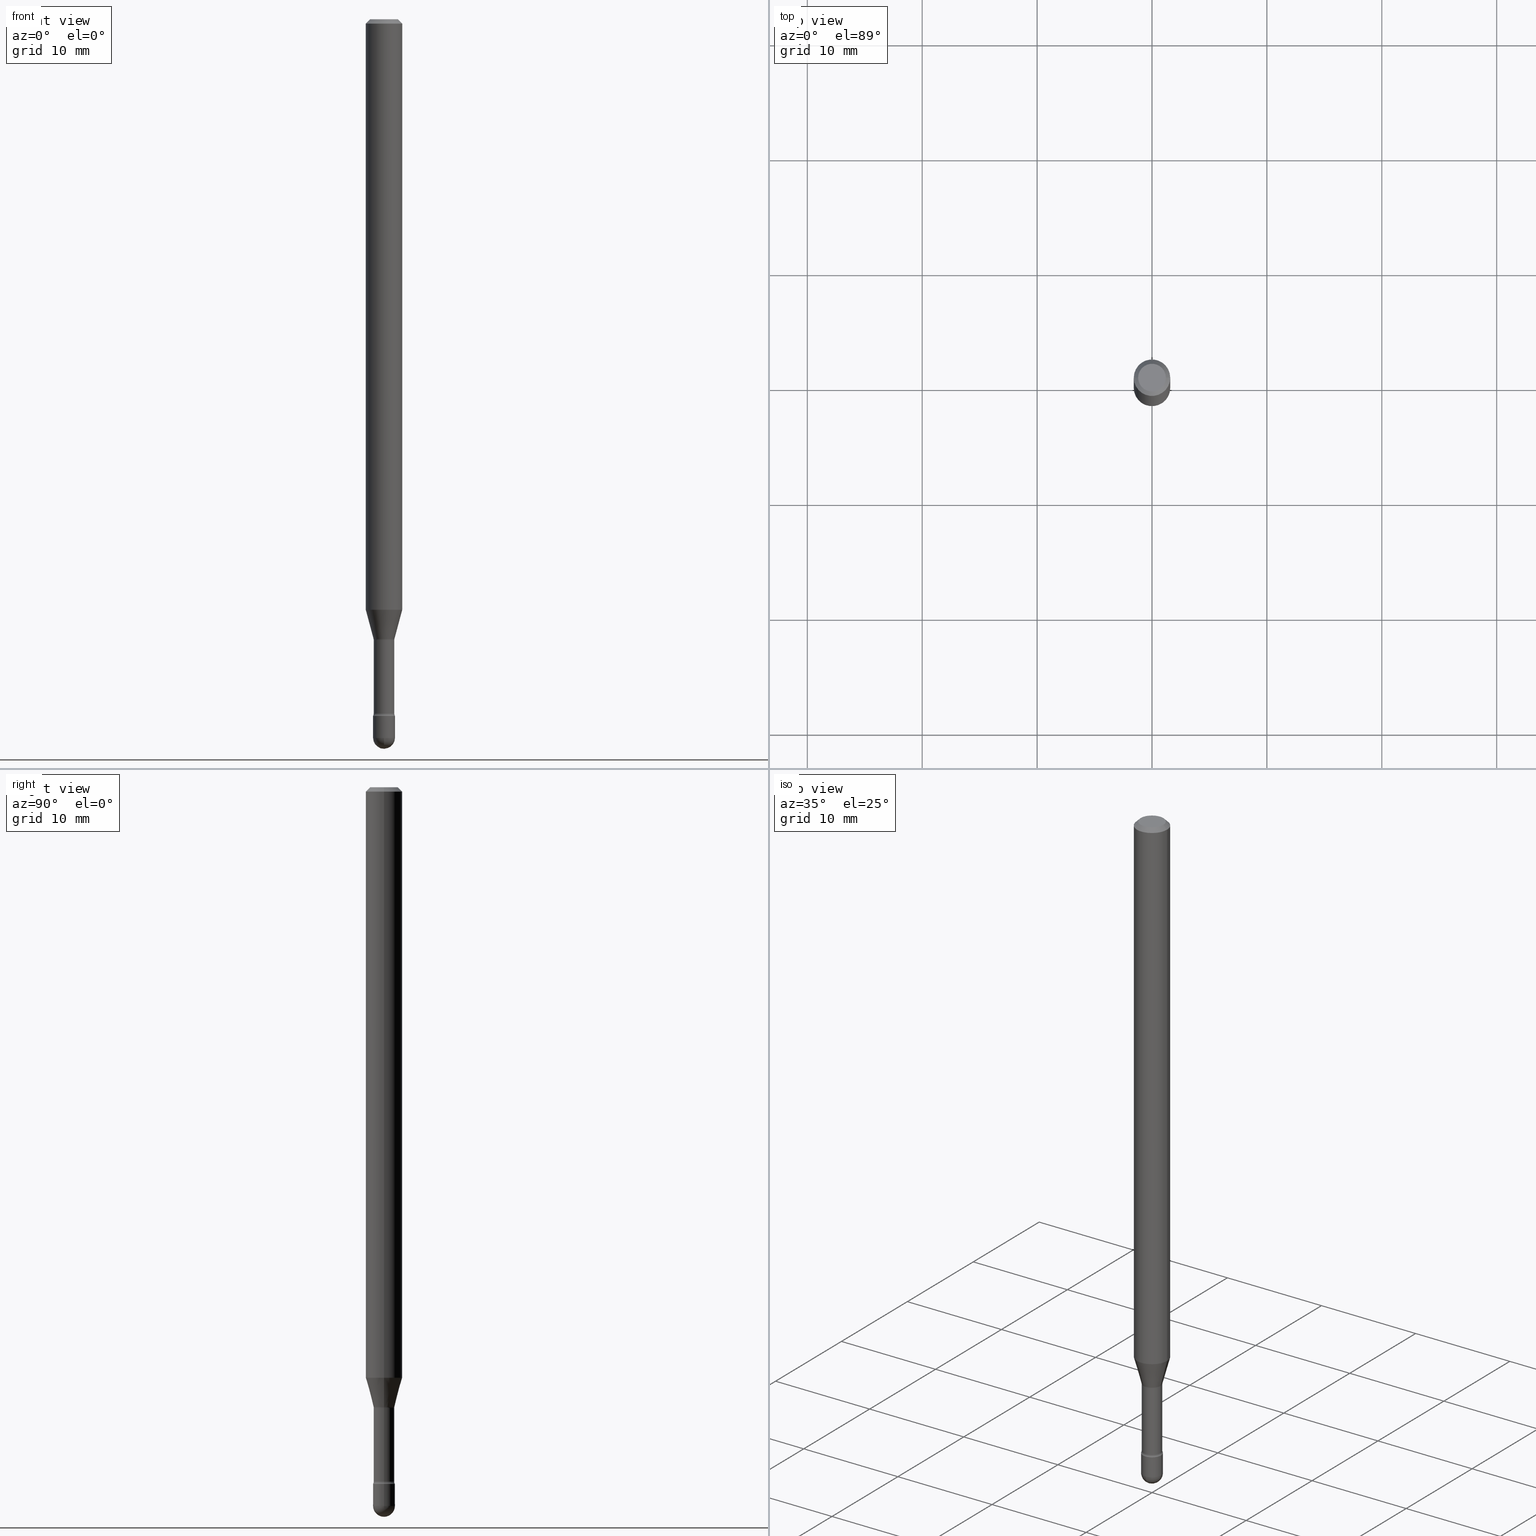
[diagram: canonical four-view strip — front | top / right | iso, engineering-drawing reading convention]
A machine part, canonical four-view strip (front | top / right | iso — engineering-drawing reading convention). The complete STEP part file that produces these views, byte-faithful:
ISO-10303-21;
HEADER;
FILE_DESCRIPTION (( 'STEP AP203' ),
    '1' );
FILE_NAME ('09523.STEP',
    '2024-04-10T00:13:44',
    ( '' ),
    ( '' ),
    'SwSTEP 2.0',
    'SolidWorks 2023',
    '' );
FILE_SCHEMA (( 'CONFIG_CONTROL_DESIGN' ));
ENDSEC;

DATA;
#1 = CARTESIAN_POINT ( 'NONE',  ( 2.023552857353652888E-45, -2.889097183224559242E-31, -8.274703207154537794E-17 ) ) ;
#2 = APPLICATION_CONTEXT ( 'configuration controlled 3d designs of mechanical parts and assemblies' ) ;
#3 = EDGE_LOOP ( 'NONE', ( #565, #58, #166, #438 ) ) ;
#4 = LINE ( 'NONE', #319, #129 ) ;
#5 = CARTESIAN_POINT ( 'NONE',  ( 5.837334040363921048E-29, -8.334165955818587781E-15, -2.387000000000000011 ) ) ;
#6 = DIRECTION ( 'NONE',  ( -2.445468806185136597E-29, 3.491481338843145583E-15, 1.000000000000000000 ) ) ;
#7 = DIRECTION ( 'NONE',  ( -2.445468806185136597E-29, 3.491481338843145583E-15, 1.000000000000000000 ) ) ;
#8 = DIRECTION ( 'NONE',  ( 1.000000000000000000, -6.982962677686265922E-15, 4.876176775795935793E-29 ) ) ;
#9 = AXIS2_PLACEMENT_3D ( 'NONE', #322, #56, #16 ) ;
#10 = ORIENTED_EDGE ( 'NONE', *, *, #157, .T. ) ;
#11 = EDGE_CURVE ( 'NONE', #65, #131, #46, .T. ) ;
#12 = DIRECTION ( 'NONE',  ( -2.445468806185136877E-29, 3.491481338843145188E-15, 1.000000000000000000 ) ) ;
#13 = CARTESIAN_POINT ( 'NONE',  ( 0.03524999999999997580, -8.552726611354078422E-15, -2.379098259685360262 ) ) ;
#14 = EDGE_LOOP ( 'NONE', ( #270, #247, #342, #406, #228 ) ) ;
#15 = APPLICATION_PROTOCOL_DEFINITION ( 'international standard', 'config_control_design', 1994, #2 ) ;
#16 = DIRECTION ( 'NONE',  ( 1.000000000000000000, -6.982962677686258033E-15, 0.000000000000000000 ) ) ;
#17 = EDGE_LOOP ( 'NONE', ( #388, #339 ) ) ;
#18 = CARTESIAN_POINT ( 'NONE',  ( -0.03525000000000000355, -7.615968663437265781E-15, -2.126974787463811190 ) ) ;
#19 = DIRECTION ( 'NONE',  ( 1.000000000000000000, -6.982962677686265922E-15, 4.876176775795935793E-29 ) ) ;
#20 = EDGE_CURVE ( 'NONE', #484, #363, #242, .T. ) ;
#21 = COORDINATED_UNIVERSAL_TIME_OFFSET ( 5, 0, .BEHIND. ) ;
#22 = CONICAL_SURFACE ( 'NONE', #137, 0.06250000000000000000, 0.7853981633974483900 ) ;
#23 = DIRECTION ( 'NONE',  ( -2.438088387897960049E-29, 3.491481338843145188E-15, 1.000000000000000000 ) ) ;
#24 = APPROVAL_STATUS ( 'not_yet_approved' ) ;
#25 = CARTESIAN_POINT ( 'NONE',  ( 5.837334040363921048E-29, -8.334165955818587781E-15, -2.387000000000000011 ) ) ;
#26 = CC_DESIGN_DATE_AND_TIME_ASSIGNMENT ( #330, #285, ( #189 ) ) ;
#27 = PRODUCT ( '09523', '09523', '', ( #264 ) ) ;
#28 = COORDINATED_UNIVERSAL_TIME_OFFSET ( 5, 0, .BEHIND. ) ;
#29 = EDGE_CURVE ( 'NONE', #187, #430, #215, .T. ) ;
#30 = AXIS2_PLACEMENT_3D ( 'NONE', #297, #467, #559 ) ;
#31 = AXIS2_PLACEMENT_3D ( 'NONE', #266, #23, #8 ) ;
#32 = EDGE_CURVE ( 'NONE', #169, #466, #239, .T. ) ;
#33 = ORIENTED_EDGE ( 'NONE', *, *, #186, .F. ) ;
#34 = DIRECTION ( 'NONE',  ( -2.445468806185136597E-29, 3.491481338843145583E-15, 1.000000000000000000 ) ) ;
#35 = DIRECTION ( 'NONE',  ( 1.000000000000000000, -6.982962677686270655E-15, 0.000000000000000000 ) ) ;
#36 = AXIS2_PLACEMENT_3D ( 'NONE', #25, #194, #371 ) ;
#37 = ORIENTED_EDGE ( 'NONE', *, *, #426, .T. ) ;
#38 = CARTESIAN_POINT ( 'NONE',  ( 0.03576111260566391253, -7.662456365265959066E-15, -2.123092501787273711 ) ) ;
#39 = FACE_OUTER_BOUND ( 'NONE', #172, .T. ) ;
#40 = VERTEX_POINT ( 'NONE', #127 ) ;
#41 = CYLINDRICAL_SURFACE ( 'NONE', #207, 0.03524999999999998274 ) ;
#42 = CARTESIAN_POINT ( 'NONE',  ( 6.021966935230899318E-29, -8.597772796901246653E-15, -2.462500000000000355 ) ) ;
#43 = SECURITY_CLASSIFICATION ( '', '', #457 ) ;
#44 = DESIGN_CONTEXT ( 'detailed design', #2, 'design' ) ;
#45 = ORIENTED_EDGE ( 'NONE', *, *, #116, .T. ) ;
#46 = CIRCLE ( 'NONE', #69, 0.04749999999999999362 ) ;
#47 = EDGE_CURVE ( 'NONE', #203, #141, #446, .T. ) ;
#48 = CYLINDRICAL_SURFACE ( 'NONE', #462, 0.06250000000000000000 ) ;
#49 = DIRECTION ( 'NONE',  ( 1.000000000000000000, -6.982962677686266711E-15, 0.000000000000000000 ) ) ;
#50 = AXIS2_PLACEMENT_3D ( 'NONE', #447, #64, #19 ) ;
#51 = ORIENTED_EDGE ( 'NONE', *, *, #116, .F. ) ;
#52 = DIRECTION ( 'NONE',  ( -2.445468806185136597E-29, 3.491481338843145583E-15, 1.000000000000000000 ) ) ;
#53 = DIRECTION ( 'NONE',  ( -2.445468806185136597E-29, 3.491481338843145583E-15, 1.000000000000000000 ) ) ;
#54 = VERTEX_POINT ( 'NONE', #432 ) ;
#55 = VECTOR ( 'NONE', #344, 39.37007874015748143 ) ;
#56 = DIRECTION ( 'NONE',  ( -2.445468806185136597E-29, 3.491481338843145583E-15, 1.000000000000000000 ) ) ;
#57 = EDGE_CURVE ( 'NONE', #353, #298, #71, .T. ) ;
#58 = ORIENTED_EDGE ( 'NONE', *, *, #29, .T. ) ;
#59 = CARTESIAN_POINT ( 'NONE',  ( -0.03576111260566391253, -6.889435243139543592E-15, -2.123092501787273711 ) ) ;
#60 = PRODUCT_RELATED_PRODUCT_CATEGORY ( 'detail', '', ( #27 ) ) ;
#61 = AXIS2_PLACEMENT_3D ( 'NONE', #309, #525, #122 ) ;
#62 = ORIENTED_EDGE ( 'NONE', *, *, #317, .T. ) ;
#63 = DIRECTION ( 'NONE',  ( 1.000000000000000000, -6.982962677686251722E-15, 0.000000000000000000 ) ) ;
#64 = DIRECTION ( 'NONE',  ( -2.438088387897960049E-29, 3.491481338843145188E-15, 1.000000000000000000 ) ) ;
#65 = VERTEX_POINT ( 'NONE', #560 ) ;
#66 = CARTESIAN_POINT ( 'NONE',  ( -0.06250000000000000000, -3.114256816865067970E-15, -0.01500000000000008271 ) ) ;
#67 = PERSON_AND_ORGANIZATION ( #294, #244 ) ;
#68 = FACE_OUTER_BOUND ( 'NONE', #360, .T. ) ;
#69 = AXIS2_PLACEMENT_3D ( 'NONE', #493, #109, #452 ) ;
#70 = PERSON_AND_ORGANIZATION ( #294, #244 ) ;
#71 = CIRCLE ( 'NONE', #553, 0.06250000000000000000 ) ;
#72 = EDGE_CURVE ( 'NONE', #484, #54, #546, .T. ) ;
#73 = CC_DESIGN_DATE_AND_TIME_ASSIGNMENT ( #191, #500, ( #43 ) ) ;
#74 = VECTOR ( 'NONE', #335, 39.37007874015748143 ) ;
#75 = LOCAL_TIME ( 20, 13, 44.00000000000000000, #144 ) ;
#76 = CARTESIAN_POINT ( 'NONE',  ( 5.818010580909894890E-29, -8.306577176965639319E-15, -2.379098259685360262 ) ) ;
#77 = CARTESIAN_POINT ( 'NONE',  ( 5.201450494285011202E-29, -7.426292778619762925E-15, -2.126974787463811190 ) ) ;
#78 = EDGE_LOOP ( 'NONE', ( #310, #268, #445, #536 ) ) ;
#79 = CC_DESIGN_PERSON_AND_ORGANIZATION_ASSIGNMENT ( #414, #368, ( #543 ) ) ;
#80 = AXIS2_PLACEMENT_3D ( 'NONE', #517, #425, #84 ) ;
#81 = FACE_OUTER_BOUND ( 'NONE', #505, .T. ) ;
#82 = ORIENTED_EDGE ( 'NONE', *, *, #385, .T. ) ;
#83 = DIRECTION ( 'NONE',  ( 1.000000000000000000, -6.982962677686258033E-15, 0.000000000000000000 ) ) ;
#84 = DIRECTION ( 'NONE',  ( -1.000000000000000000, 6.982962677686266711E-15, 0.000000000000000000 ) ) ;
#85 = EDGE_CURVE ( 'NONE', #131, #65, #415, .T. ) ;
#86 = ORIENTED_EDGE ( 'NONE', *, *, #307, .F. ) ;
#87 = DIRECTION ( 'NONE',  ( -2.445468806185136597E-29, 3.491481338843145583E-15, 1.000000000000000000 ) ) ;
#88 = DIRECTION ( 'NONE',  ( -2.445468806185136877E-29, 3.491481338843145188E-15, 1.000000000000000000 ) ) ;
#89 = VERTEX_POINT ( 'NONE', #352 ) ;
#90 = CARTESIAN_POINT ( 'NONE',  ( -0.06250000000000000000, 4.440892098500642925E-16, 4.780733988912429571E-16 ) ) ;
#91 = DIRECTION ( 'NONE',  ( -0.7071067811865475727, 2.468850131082257455E-15, -0.7071067811865474617 ) ) ;
#92 = CIRCLE ( 'NONE', #103, 0.03749999999999999861 ) ;
#93 = ORIENTED_EDGE ( 'NONE', *, *, #554, .F. ) ;
#94 = DIRECTION ( 'NONE',  ( 0.2588190451025217942, 1.565188264969618812E-15, 0.9659258262890679791 ) ) ;
#95 = DIRECTION ( 'NONE',  ( 1.000000000000000000, -6.982962677686259611E-15, 0.000000000000000000 ) ) ;
#96 = AXIS2_PLACEMENT_3D ( 'NONE', #102, #178, #140 ) ;
#97 = ORIENTED_EDGE ( 'NONE', *, *, #32, .F. ) ;
#98 = DIRECTION ( 'NONE',  ( -2.445468806185136597E-29, 3.491481338843145583E-15, 1.000000000000000000 ) ) ;
#99 = CARTESIAN_POINT ( 'NONE',  ( 0.03750000000000001943, -8.596027056231822783E-15, -2.387000000000000011 ) ) ;
#100 = EDGE_LOOP ( 'NONE', ( #520, #481 ) ) ;
#101 = APPROVAL_STATUS ( 'not_yet_approved' ) ;
#102 = CARTESIAN_POINT ( 'NONE',  ( 5.818010580909893769E-29, -8.306577176965637742E-15, -2.379098259685360262 ) ) ;
#103 = AXIS2_PLACEMENT_3D ( 'NONE', #272, #192, #440 ) ;
#104 = EDGE_LOOP ( 'NONE', ( #209, #45, #212, #340 ) ) ;
#105 = TOROIDAL_SURFACE ( 'NONE', #448, 0.05024999999999999606, 0.01500000000000001853 ) ;
#106 =( NAMED_UNIT ( * ) SI_UNIT ( $, .STERADIAN. ) SOLID_ANGLE_UNIT ( ) );
#107 = FACE_OUTER_BOUND ( 'NONE', #160, .T. ) ;
#108 =( GEOMETRIC_REPRESENTATION_CONTEXT ( 3 ) GLOBAL_UNCERTAINTY_ASSIGNED_CONTEXT ( ( #519 ) ) GLOBAL_UNIT_ASSIGNED_CONTEXT ( ( #230, #135, #106 ) ) REPRESENTATION_CONTEXT ( 'NONE', 'WORKASPACE' ) );
#109 = DIRECTION ( 'NONE',  ( -2.445468806185136597E-29, 3.491481338843145583E-15, 1.000000000000000000 ) ) ;
#110 = ADVANCED_FACE ( 'NONE', ( #267 ), #441, .F. ) ;
#111 = DIRECTION ( 'NONE',  ( 6.982962677686265922E-15, 1.000000000000000000, 0.000000000000000000 ) ) ;
#112 = APPROVAL_STATUS ( 'not_yet_approved' ) ;
#113 = VECTOR ( 'NONE', #465, 39.37007874015748143 ) ;
#114 = ADVANCED_FACE ( 'NONE', ( #241 ), #22, .T. ) ;
#115 = APPROVAL_ROLE ( '' ) ;
#116 = EDGE_CURVE ( 'NONE', #363, #89, #333, .T. ) ;
#117 = AXIS2_PLACEMENT_3D ( 'NONE', #165, #221, #480 ) ;
#118 = DIRECTION ( 'NONE',  ( -1.000000000000000000, 6.982962677686265922E-15, -4.876176775795935793E-29 ) ) ;
#119 = APPROVAL ( #101, 'UNSPECIFIED' ) ;
#120 = ORIENTED_EDGE ( 'NONE', *, *, #291, .T. ) ;
#121 = CARTESIAN_POINT ( 'NONE',  ( 5.818010580909894890E-29, -8.306577176965639319E-15, -2.379098259685360262 ) ) ;
#122 = DIRECTION ( 'NONE',  ( 1.000000000000000000, -6.982962677686270655E-15, 0.000000000000000000 ) ) ;
#123 = ORIENTED_EDGE ( 'NONE', *, *, #468, .T. ) ;
#124 = AXIS2_PLACEMENT_3D ( 'NONE', #504, #202, #118 ) ;
#125 = SPHERICAL_SURFACE ( 'NONE', #284, 0.03749999999999990147 ) ;
#126 = EDGE_CURVE ( 'NONE', #466, #169, #243, .T. ) ;
#127 = CARTESIAN_POINT ( 'NONE',  ( 0.03749999999999999861, -8.727830476773152219E-15, -2.462500000000000355 ) ) ;
#128 = ORIENTED_EDGE ( 'NONE', *, *, #229, .T. ) ;
#129 = VECTOR ( 'NONE', #12, 39.37007874015748143 ) ;
#130 = CARTESIAN_POINT ( 'NONE',  ( 0.06250000000000000000, -4.888073874380391431E-16, -0.01500000000000008271 ) ) ;
#131 = VERTEX_POINT ( 'NONE', #200 ) ;
#132 = FACE_OUTER_BOUND ( 'NONE', #3, .T. ) ;
#133 = ORIENTED_EDGE ( 'NONE', *, *, #426, .F. ) ;
#134 = EDGE_CURVE ( 'NONE', #203, #532, #376, .T. ) ;
#135 =( NAMED_UNIT ( * ) PLANE_ANGLE_UNIT ( ) SI_UNIT ( $, .RADIAN. ) );
#136 = CARTESIAN_POINT ( 'NONE',  ( 5.191956485766338459E-29, -7.412737850628073127E-15, -2.123092501787273711 ) ) ;
#137 = AXIS2_PLACEMENT_3D ( 'NONE', #338, #499, #155 ) ;
#138 = ORIENTED_EDGE ( 'NONE', *, *, #377, .F. ) ;
#139 = APPLICATION_CONTEXT ( 'configuration controlled 3d designs of mechanical parts and assemblies' ) ;
#140 = DIRECTION ( 'NONE',  ( 1.000000000000000000, -6.982962677686275388E-15, 0.000000000000000000 ) ) ;
#141 = VERTEX_POINT ( 'NONE', #161 ) ;
#142 = FACE_OUTER_BOUND ( 'NONE', #473, .T. ) ;
#143 = ORIENTED_EDGE ( 'NONE', *, *, #201, .F. ) ;
#144 = COORDINATED_UNIVERSAL_TIME_OFFSET ( 5, 0, .BEHIND. ) ;
#145 = CARTESIAN_POINT ( 'NONE',  ( 0.03576111260566391253, -7.662456365265959066E-15, -2.123092501787273711 ) ) ;
#146 = EDGE_CURVE ( 'NONE', #357, #430, #323, .T. ) ;
#147 = AXIS2_PLACEMENT_3D ( 'NONE', #175, #392, #95 ) ;
#148 = EDGE_LOOP ( 'NONE', ( #33, #86 ) ) ;
#149 = CARTESIAN_POINT ( 'NONE',  ( 0.000000000000000000, 0.000000000000000000, 0.000000000000000000 ) ) ;
#150 = CARTESIAN_POINT ( 'NONE',  ( 5.201450494285011202E-29, -7.426292778619762925E-15, -2.126974787463811190 ) ) ;
#151 = ADVANCED_FACE ( 'NONE', ( #39 ), #48, .T. ) ;
#152 = CLOSED_SHELL ( 'NONE', ( #501, #354, #459, #281, #151, #488, #346, #518, #114, #110, #419, #436, #496, #409 ) ) ;
#153 = AXIS2_PLACEMENT_3D ( 'NONE', #42, #245, #379 ) ;
#154 = APPROVAL ( #112, 'UNSPECIFIED' ) ;
#155 = DIRECTION ( 'NONE',  ( -1.000000000000000000, 6.982962677686266711E-15, 0.000000000000000000 ) ) ;
#156 = SHAPE_DEFINITION_REPRESENTATION ( #416, #231 ) ;
#157 = EDGE_CURVE ( 'NONE', #514, #89, #469, .T. ) ;
#158 = AXIS2_PLACEMENT_3D ( 'NONE', #563, #341, #391 ) ;
#159 = LOCAL_TIME ( 20, 13, 44.00000000000000000, #498 ) ;
#160 = EDGE_LOOP ( 'NONE', ( #254, #123, #449, #93 ) ) ;
#161 = CARTESIAN_POINT ( 'NONE',  ( -0.03750000000000001943, -8.067712429908551158E-15, -2.387000000000000011 ) ) ;
#162 = ORIENTED_EDGE ( 'NONE', *, *, #47, .F. ) ;
#163 = EDGE_CURVE ( 'NONE', #349, #54, #260, .T. ) ;
#164 = CARTESIAN_POINT ( 'NONE',  ( -1.169113584055446105E-44, 1.669184350826100908E-30, 4.780733988912460139E-16 ) ) ;
#165 = CARTESIAN_POINT ( 'NONE',  ( -0.05025000000000001688, -7.949529452246189645E-15, -2.379098259685360262 ) ) ;
#166 = ORIENTED_EDGE ( 'NONE', *, *, #146, .F. ) ;
#167 = CARTESIAN_POINT ( 'NONE',  ( -1.169113584055446105E-44, 1.669184350826100908E-30, 4.780733988912460139E-16 ) ) ;
#168 = DIRECTION ( 'NONE',  ( 7.105427357601001859E-15, 1.000000000000000000, -3.491481338843145583E-15 ) ) ;
#169 = VERTEX_POINT ( 'NONE', #566 ) ;
#170 = DIRECTION ( 'NONE',  ( 6.982962677686265922E-15, 1.000000000000000000, 0.000000000000000000 ) ) ;
#171 = DIRECTION ( 'NONE',  ( 1.000000000000000000, -6.982962677686267499E-15, 4.884662768193073002E-29 ) ) ;
#172 = EDGE_LOOP ( 'NONE', ( #10, #378, #314, #143 ) ) ;
#173 = AXIS2_PLACEMENT_3D ( 'NONE', #76, #213, #556 ) ;
#174 = DIRECTION ( 'NONE',  ( -2.445468806185136597E-29, 3.491481338843145583E-15, 1.000000000000000000 ) ) ;
#175 = CARTESIAN_POINT ( 'NONE',  ( 0.05024999999999999606, -7.777186653173496975E-15, -2.126974787463811190 ) ) ;
#176 = EDGE_LOOP ( 'NONE', ( #475, #433, #470, #318 ) ) ;
#177 = DIRECTION ( 'NONE',  ( -2.445468806185136597E-29, 3.491481338843145583E-15, 1.000000000000000000 ) ) ;
#178 = DIRECTION ( 'NONE',  ( -2.445468806185136597E-29, 3.491481338843145583E-15, 1.000000000000000000 ) ) ;
#179 = AXIS2_PLACEMENT_3D ( 'NONE', #136, #408, #313 ) ;
#180 = ORIENTED_EDGE ( 'NONE', *, *, #337, .T. ) ;
#181 = DIRECTION ( 'NONE',  ( 1.000000000000000000, -6.982962677686266711E-15, 4.852736867747366207E-29 ) ) ;
#182 = FACE_OUTER_BOUND ( 'NONE', #279, .T. ) ;
#183 = EDGE_LOOP ( 'NONE', ( #421, #404, #561, #347 ) ) ;
#184 = PERSON_AND_ORGANIZATION ( #294, #244 ) ;
#185 = CARTESIAN_POINT ( 'NONE',  ( -0.03749999999999999861, -8.199515850449880594E-15, -2.462500000000000355 ) ) ;
#186 = EDGE_CURVE ( 'NONE', #427, #141, #197, .T. ) ;
#187 = VERTEX_POINT ( 'NONE', #512 ) ;
#188 = CARTESIAN_POINT ( 'NONE',  ( 0.05025000000000001688, -8.657471051519373369E-15, -2.379098259685360262 ) ) ;
#189 = PRODUCT_DEFINITION ( 'UNKNOWN', '', #543, #44 ) ;
#190 = AXIS2_PLACEMENT_3D ( 'NONE', #403, #451, #235 ) ;
#191 = DATE_AND_TIME ( #240, #367 ) ;
#192 = DIRECTION ( 'NONE',  ( -2.445468806185136597E-29, 3.491481338843145583E-15, 1.000000000000000000 ) ) ;
#193 = ADVANCED_FACE ( 'NONE', ( #132 ), #125, .T. ) ;
#194 = DIRECTION ( 'NONE',  ( -2.445468806185136597E-29, 3.491481338843145583E-15, 1.000000000000000000 ) ) ;
#195 = LOCAL_TIME ( 20, 13, 44.00000000000000000, #28 ) ;
#196 = CC_DESIGN_PERSON_AND_ORGANIZATION_ASSIGNMENT ( #283, #417, ( #543 ) ) ;
#197 = CIRCLE ( 'NONE', #290, 0.03749999999999999861 ) ;
#198 = CALENDAR_DATE ( 2024, 9, 4 ) ;
#199 = CC_DESIGN_APPROVAL ( #154, ( #43 ) ) ;
#200 = CARTESIAN_POINT ( 'NONE',  ( 0.04749999999999999362, -4.035134999187581581E-16, -8.274703207154280181E-17 ) ) ;
#201 = EDGE_CURVE ( 'NONE', #514, #298, #205, .T. ) ;
#202 = DIRECTION ( 'NONE',  ( 2.438088387897960049E-29, -3.491481338843145188E-15, -1.000000000000000000 ) ) ;
#203 = VERTEX_POINT ( 'NONE', #507 ) ;
#204 = CIRCLE ( 'NONE', #61, 0.03524999999999999661 ) ;
#205 = LINE ( 'NONE', #431, #458 ) ;
#206 = CARTESIAN_POINT ( 'NONE',  ( 3.668203209277725232E-31, -5.237222008264747365E-17, -0.01500000000000008271 ) ) ;
#207 = AXIS2_PLACEMENT_3D ( 'NONE', #167, #87, #256 ) ;
#208 = EDGE_CURVE ( 'NONE', #54, #532, #204, .T. ) ;
#209 = ORIENTED_EDGE ( 'NONE', *, *, #20, .T. ) ;
#210 = FACE_OUTER_BOUND ( 'NONE', #104, .T. ) ;
#211 = DIRECTION ( 'NONE',  ( -1.000000000000000000, 6.982962677686265922E-15, -4.883557194083112340E-29 ) ) ;
#212 = ORIENTED_EDGE ( 'NONE', *, *, #157, .F. ) ;
#213 = DIRECTION ( 'NONE',  ( -2.445468806185136597E-29, 3.491481338843145583E-15, 1.000000000000000000 ) ) ;
#214 = CARTESIAN_POINT ( 'NONE',  ( 0.03524999999999998274, -2.461494343884391522E-16, 4.780733988912477889E-16 ) ) ;
#215 = CIRCLE ( 'NONE', #538, 0.03749999999999990147 ) ;
#216 = AXIS2_PLACEMENT_3D ( 'NONE', #521, #435, #429 ) ;
#217 = ORIENTED_EDGE ( 'NONE', *, *, #47, .T. ) ;
#218 = LOCAL_TIME ( 20, 13, 44.00000000000000000, #402 ) ;
#219 = CARTESIAN_POINT ( 'NONE',  ( 5.201450494285011202E-29, -7.426292778619762925E-15, -2.126974787463811190 ) ) ;
#220 = DIRECTION ( 'NONE',  ( 1.000000000000000000, -6.982962677686266711E-15, 0.000000000000000000 ) ) ;
#221 = DIRECTION ( 'NONE',  ( 7.105427357601001859E-15, 1.000000000000000000, -3.491481338843145583E-15 ) ) ;
#222 = CARTESIAN_POINT ( 'NONE',  ( 5.191956485766338459E-29, -7.412737850628073127E-15, -2.123092501787273711 ) ) ;
#223 = CYLINDRICAL_SURFACE ( 'NONE', #541, 0.03749999999999999861 ) ;
#224 = ORIENTED_EDGE ( 'NONE', *, *, #317, .F. ) ;
#225 = PERSON_AND_ORGANIZATION_ROLE ( 'creator' ) ;
#226 = DIRECTION ( 'NONE',  ( -2.445468806185136597E-29, 3.491481338843145583E-15, 1.000000000000000000 ) ) ;
#227 = AXIS2_PLACEMENT_3D ( 'NONE', #437, #53, #306 ) ;
#228 = ORIENTED_EDGE ( 'NONE', *, *, #126, .F. ) ;
#229 = EDGE_CURVE ( 'NONE', #40, #442, #434, .T. ) ;
#230 =( CONVERSION_BASED_UNIT ( 'INCH', #280 ) LENGTH_UNIT ( ) NAMED_UNIT ( #293 ) );
#231 = ADVANCED_BREP_SHAPE_REPRESENTATION ( '09523', ( #327, #497, #418 ), #108 ) ;
#232 = CARTESIAN_POINT ( 'NONE',  ( 0.000000000000000000, 0.000000000000000000, 0.000000000000000000 ) ) ;
#233 = ORIENTED_EDGE ( 'NONE', *, *, #413, .T. ) ;
#234 = APPLICATION_PROTOCOL_DEFINITION ( 'international standard', 'config_control_design', 1994, #139 ) ;
#235 = DIRECTION ( 'NONE',  ( 1.000000000000000000, -6.982962677686268288E-15, 4.818320294217244513E-29 ) ) ;
#236 = APPROVAL_ROLE ( '' ) ;
#237 = FACE_OUTER_BOUND ( 'NONE', #100, .T. ) ;
#238 = EDGE_CURVE ( 'NONE', #532, #54, #259, .T. ) ;
#239 = CIRCLE ( 'NONE', #227, 0.03749999999999999861 ) ;
#240 = CALENDAR_DATE ( 2024, 9, 4 ) ;
#241 = FACE_OUTER_BOUND ( 'NONE', #176, .T. ) ;
#242 = CIRCLE ( 'NONE', #456, 0.03576111260566391253 ) ;
#243 = CIRCLE ( 'NONE', #36, 0.03749999999999999861 ) ;
#244 = ORGANIZATION ( 'UNSPECIFIED', 'UNSPECIFIED', '' ) ;
#245 = DIRECTION ( 'NONE',  ( -2.445468806185136597E-29, 3.491481338843145583E-15, 1.000000000000000000 ) ) ;
#246 = EDGE_CURVE ( 'NONE', #40, #169, #302, .T. ) ;
#247 = ORIENTED_EDGE ( 'NONE', *, *, #146, .T. ) ;
#248 = CONICAL_SURFACE ( 'NONE', #9, 0.03576111260566391253, 0.2617993877991505181 ) ;
#249 = CARTESIAN_POINT ( 'NONE',  ( 2.618611004132948565E-16, 0.03749999999999135275, -2.462500000000000355 ) ) ;
#250 = CARTESIAN_POINT ( 'NONE',  ( -0.06250000000000000000, 3.840629472727441958E-16, -0.01500000000000008271 ) ) ;
#251 = CC_DESIGN_PERSON_AND_ORGANIZATION_ASSIGNMENT ( #545, #410, ( #43 ) ) ;
#252 = EDGE_LOOP ( 'NONE', ( #51, #62, #233, #138 ) ) ;
#253 = FACE_OUTER_BOUND ( 'NONE', #14, .T. ) ;
#254 = ORIENTED_EDGE ( 'NONE', *, *, #29, .F. ) ;
#255 = EDGE_CURVE ( 'NONE', #65, #353, #472, .T. ) ;
#256 = DIRECTION ( 'NONE',  ( 1.000000000000000000, -6.982962677686268288E-15, 4.818320294217244513E-29 ) ) ;
#257 = CYLINDRICAL_SURFACE ( 'NONE', #216, 0.03749999999999999861 ) ;
#258 = EDGE_LOOP ( 'NONE', ( #308, #217, #394, #523 ) ) ;
#259 = CIRCLE ( 'NONE', #356, 0.03524999999999999661 ) ;
#260 = LINE ( 'NONE', #214, #113 ) ;
#261 = ORIENTED_EDGE ( 'NONE', *, *, #85, .F. ) ;
#262 = TOROIDAL_SURFACE ( 'NONE', #531, 0.05024999999999999606, 0.01500000000000001853 ) ;
#263 = CC_DESIGN_PERSON_AND_ORGANIZATION_ASSIGNMENT ( #443, #225, ( #189 ) ) ;
#264 = MECHANICAL_CONTEXT ( 'NONE', #139, 'mechanical' ) ;
#265 = AXIS2_PLACEMENT_3D ( 'NONE', #562, #511, #83 ) ;
#266 = CARTESIAN_POINT ( 'NONE',  ( 2.618611004132933280E-16, 0.03749999999999166500, -2.387000000000000011 ) ) ;
#267 = FACE_OUTER_BOUND ( 'NONE', #17, .T. ) ;
#268 = ORIENTED_EDGE ( 'NONE', *, *, #548, .T. ) ;
#269 = APPROVAL_DATE_TIME ( #271, #119 ) ;
#270 = ORIENTED_EDGE ( 'NONE', *, *, #544, .F. ) ;
#271 = DATE_AND_TIME ( #482, #75 ) ;
#272 = CARTESIAN_POINT ( 'NONE',  ( 6.021966935230899318E-29, -8.597772796901246653E-15, -2.462500000000000355 ) ) ;
#273 = AXIS2_PLACEMENT_3D ( 'NONE', #396, #174, #444 ) ;
#274 = ORIENTED_EDGE ( 'NONE', *, *, #134, .T. ) ;
#275 = CC_DESIGN_SECURITY_CLASSIFICATION ( #43, ( #543 ) ) ;
#276 = CARTESIAN_POINT ( 'NONE',  ( 5.818010580909893769E-29, -8.306577176965637742E-15, -2.379098259685360262 ) ) ;
#277 = AXIS2_PLACEMENT_3D ( 'NONE', #524, #177, #540 ) ;
#278 = CONICAL_SURFACE ( 'NONE', #265, 0.03576111260566391253, 0.2617993877991505181 ) ;
#279 = EDGE_LOOP ( 'NONE', ( #399, #324, #295, #423 ) ) ;
#280 = LENGTH_MEASURE_WITH_UNIT ( LENGTH_MEASURE( 0.02539999999999999897 ), #350 );
#281 = ADVANCED_FACE ( 'NONE', ( #81 ), #299, .T. ) ;
#282 = CARTESIAN_POINT ( 'NONE',  ( 0.06250000000000000000, -4.811533449433681963E-16, -0.01500000000000008271 ) ) ;
#283 = PERSON_AND_ORGANIZATION ( #294, #244 ) ;
#284 = AXIS2_PLACEMENT_3D ( 'NONE', #422, #211, #170 ) ;
#285 = DATE_TIME_ROLE ( 'creation_date' ) ;
#286 = APPROVAL ( #24, 'UNSPECIFIED' ) ;
#287 = AXIS2_PLACEMENT_3D ( 'NONE', #188, #364, #63 ) ;
#288 = APPROVAL_DATE_TIME ( #370, #154 ) ;
#289 = ADVANCED_FACE ( 'NONE', ( #253 ), #257, .T. ) ;
#290 = AXIS2_PLACEMENT_3D ( 'NONE', #5, #557, #351 ) ;
#291 = EDGE_CURVE ( 'NONE', #363, #532, #373, .T. ) ;
#292 = DIRECTION ( 'NONE',  ( -2.445468806185136597E-29, 3.491481338843145583E-15, 1.000000000000000000 ) ) ;
#293 = DIMENSIONAL_EXPONENTS ( 1.000000000000000000, 0.000000000000000000, 0.000000000000000000, 0.000000000000000000, 0.000000000000000000, 0.000000000000000000, 0.000000000000000000 ) ;
#294 = PERSON ( 'UNSPECIFIED', 'UNSPECIFIED', 'UNSPECIFIED', ('UNSPECIFIED'), ('UNSPECIFIED'), ('UNSPECIFIED') ) ;
#295 = ORIENTED_EDGE ( 'NONE', *, *, #72, .T. ) ;
#296 = DIRECTION ( 'NONE',  ( 1.000000000000000000, -6.982962677686265922E-15, 4.883557194083112340E-29 ) ) ;
#297 = CARTESIAN_POINT ( 'NONE',  ( 6.021966935230899318E-29, -8.597772796901246653E-15, -2.462500000000000355 ) ) ;
#298 = VERTEX_POINT ( 'NONE', #130 ) ;
#299 = CONICAL_SURFACE ( 'NONE', #80, 0.06250000000000000000, 0.7853981633974483900 ) ;
#300 = FACE_OUTER_BOUND ( 'NONE', #258, .T. ) ;
#301 = EDGE_CURVE ( 'NONE', #298, #353, #366, .T. ) ;
#302 = LINE ( 'NONE', #476, #513 ) ;
#303 = ORIENTED_EDGE ( 'NONE', *, *, #301, .T. ) ;
#304 = TOROIDAL_SURFACE ( 'NONE', #550, 0.05025000000000001688, 0.01500000000000003414 ) ;
#305 = CARTESIAN_POINT ( 'NONE',  ( 3.668203209277725232E-31, -5.237222008264747365E-17, -0.01500000000000008271 ) ) ;
#306 = DIRECTION ( 'NONE',  ( 1.000000000000000000, -6.982962677686268288E-15, 0.000000000000000000 ) ) ;
#307 = EDGE_CURVE ( 'NONE', #141, #427, #502, .T. ) ;
#308 = ORIENTED_EDGE ( 'NONE', *, *, #548, .F. ) ;
#309 = CARTESIAN_POINT ( 'NONE',  ( 5.201450494285011202E-29, -7.426292778619762925E-15, -2.126974787463811190 ) ) ;
#310 = ORIENTED_EDGE ( 'NONE', *, *, #134, .F. ) ;
#311 = CARTESIAN_POINT ( 'NONE',  ( 0.06250000000000000000, -7.500755000703003789E-15, -2.023301615493748873 ) ) ;
#312 = VECTOR ( 'NONE', #91, 39.37007874015748143 ) ;
#313 = DIRECTION ( 'NONE',  ( 1.000000000000000000, -6.982962677686258033E-15, 0.000000000000000000 ) ) ;
#314 = ORIENTED_EDGE ( 'NONE', *, *, #301, .F. ) ;
#315 = APPROVAL_ROLE ( '' ) ;
#316 = CARTESIAN_POINT ( 'NONE',  ( -2.664535259099769655E-16, -0.03750000000000854733, -2.462500000000000355 ) ) ;
#317 = EDGE_CURVE ( 'NONE', #363, #484, #336, .T. ) ;
#318 = ORIENTED_EDGE ( 'NONE', *, *, #57, .T. ) ;
#319 = CARTESIAN_POINT ( 'NONE',  ( -0.03749999999999999861, 2.664535259100375598E-16, -1.844600658845589808E-30 ) ) ;
#320 = DIRECTION ( 'NONE',  ( -2.445468806185136597E-29, 3.491481338843145583E-15, 1.000000000000000000 ) ) ;
#321 = ORIENTED_EDGE ( 'NONE', *, *, #238, .T. ) ;
#322 = CARTESIAN_POINT ( 'NONE',  ( 5.191956485766338459E-29, -7.412737850628073127E-15, -2.123092501787273711 ) ) ;
#323 = CIRCLE ( 'NONE', #153, 0.03749999999999999861 ) ;
#324 = ORIENTED_EDGE ( 'NONE', *, *, #20, .F. ) ;
#325 = APPROVAL_PERSON_ORGANIZATION ( #184, #119, #315 ) ;
#326 = DIRECTION ( 'NONE',  ( 1.000000000000000000, -6.982962677686262766E-15, 0.000000000000000000 ) ) ;
#327 = MANIFOLD_SOLID_BREP ( 'Body-Move/Copy2[1]', #487 ) ;
#328 = CC_DESIGN_PERSON_AND_ORGANIZATION_ASSIGNMENT ( #494, #485, ( #27 ) ) ;
#329 = AXIS2_PLACEMENT_3D ( 'NONE', #495, #486, #111 ) ;
#330 = DATE_AND_TIME ( #372, #218 ) ;
#331 = AXIS2_PLACEMENT_3D ( 'NONE', #439, #7, #181 ) ;
#332 = ADVANCED_FACE ( 'NONE', ( #107 ), #492, .T. ) ;
#333 = LINE ( 'NONE', #420, #343 ) ;
#334 = CC_DESIGN_APPROVAL ( #286, ( #543 ) ) ;
#335 = DIRECTION ( 'NONE',  ( -2.445468806185136877E-29, 3.491481338843145188E-15, 1.000000000000000000 ) ) ;
#336 = CIRCLE ( 'NONE', #179, 0.03576111260566391253 ) ;
#337 = EDGE_CURVE ( 'NONE', #442, #357, #92, .T. ) ;
#338 = CARTESIAN_POINT ( 'NONE',  ( 3.668203209277725232E-31, -5.237222008264747365E-17, -0.01500000000000008271 ) ) ;
#339 = ORIENTED_EDGE ( 'NONE', *, *, #85, .T. ) ;
#340 = ORIENTED_EDGE ( 'NONE', *, *, #413, .F. ) ;
#341 = DIRECTION ( 'NONE',  ( -2.445468806185136597E-29, 3.491481338843145583E-15, 1.000000000000000000 ) ) ;
#342 = ORIENTED_EDGE ( 'NONE', *, *, #554, .T. ) ;
#343 = VECTOR ( 'NONE', #460, 39.37007874015748143 ) ;
#344 = DIRECTION ( 'NONE',  ( -2.445468806185136877E-29, 3.491481338843145188E-15, 1.000000000000000000 ) ) ;
#345 = DIRECTION ( 'NONE',  ( -1.000000000000000000, 7.105427357600982137E-15, 0.000000000000000000 ) ) ;
#346 = ADVANCED_FACE ( 'NONE', ( #454 ), #248, .T. ) ;
#347 = ORIENTED_EDGE ( 'NONE', *, *, #57, .F. ) ;
#348 = DIRECTION ( 'NONE',  ( -2.445468806185136597E-29, 3.491481338843145583E-15, 1.000000000000000000 ) ) ;
#349 = VERTEX_POINT ( 'NONE', #13 ) ;
#350 =( LENGTH_UNIT ( ) NAMED_UNIT ( * ) SI_UNIT ( $, .METRE. ) );
#351 = DIRECTION ( 'NONE',  ( 1.000000000000000000, -6.982962677686268288E-15, 0.000000000000000000 ) ) ;
#352 = CARTESIAN_POINT ( 'NONE',  ( -0.06250000000000000000, -6.620230623497551082E-15, -2.023301615493748873 ) ) ;
#353 = VERTEX_POINT ( 'NONE', #66 ) ;
#354 = ADVANCED_FACE ( 'NONE', ( #68 ), #534, .T. ) ;
#355 = AXIS2_PLACEMENT_3D ( 'NONE', #1, #508, #171 ) ;
#356 = AXIS2_PLACEMENT_3D ( 'NONE', #77, #348, #35 ) ;
#357 = VERTEX_POINT ( 'NONE', #185 ) ;
#358 = FACE_OUTER_BOUND ( 'NONE', #183, .T. ) ;
#359 = CARTESIAN_POINT ( 'NONE',  ( 4.947920986193955666E-29, -7.064319833347612909E-15, -2.023301615493748873 ) ) ;
#360 = EDGE_LOOP ( 'NONE', ( #37, #274, #539, #509 ) ) ;
#361 = FACE_OUTER_BOUND ( 'NONE', #526, .T. ) ;
#362 = PLANE ( 'NONE',  #50 ) ;
#363 = VERTEX_POINT ( 'NONE', #59 ) ;
#364 = DIRECTION ( 'NONE',  ( -6.982962677686266711E-15, -1.000000000000000000, 3.491481338843145583E-15 ) ) ;
#365 = DIRECTION ( 'NONE',  ( 0.7071067811865475727, -7.319954787623256045E-15, -0.7071067811865474617 ) ) ;
#366 = CIRCLE ( 'NONE', #527, 0.06250000000000000000 ) ;
#367 = LOCAL_TIME ( 20, 13, 44.00000000000000000, #21 ) ;
#368 = PERSON_AND_ORGANIZATION_ROLE ( 'creator' ) ;
#369 = FACE_OUTER_BOUND ( 'NONE', #148, .T. ) ;
#370 = DATE_AND_TIME ( #547, #159 ) ;
#371 = DIRECTION ( 'NONE',  ( 1.000000000000000000, -6.982962677686268288E-15, 0.000000000000000000 ) ) ;
#372 = CALENDAR_DATE ( 2024, 9, 4 ) ;
#373 = CIRCLE ( 'NONE', #478, 0.01500000000000001853 ) ;
#374 = DATE_AND_TIME ( #198, #195 ) ;
#375 = CIRCLE ( 'NONE', #516, 0.03524999999999997580 ) ;
#376 = LINE ( 'NONE', #549, #74 ) ;
#377 = EDGE_CURVE ( 'NONE', #89, #514, #412, .T. ) ;
#378 = ORIENTED_EDGE ( 'NONE', *, *, #450, .T. ) ;
#379 = DIRECTION ( 'NONE',  ( 1.000000000000000000, -6.982962677686242256E-15, 0.000000000000000000 ) ) ;
#380 = ADVANCED_FACE ( 'NONE', ( #142 ), #223, .T. ) ;
#381 = DIRECTION ( 'NONE',  ( -1.000000000000000000, 7.105427357601001070E-15, -4.926315508542082329E-29 ) ) ;
#382 = ORIENTED_EDGE ( 'NONE', *, *, #72, .F. ) ;
#383 = DIRECTION ( 'NONE',  ( -2.445468806185136877E-29, 3.491481338843145188E-15, 1.000000000000000000 ) ) ;
#384 = ORIENTED_EDGE ( 'NONE', *, *, #255, .F. ) ;
#385 = EDGE_CURVE ( 'NONE', #131, #298, #542, .T. ) ;
#386 = CARTESIAN_POINT ( 'NONE',  ( -0.05024999999999999606, -7.069245053900312462E-15, -2.126974787463811190 ) ) ;
#387 = CARTESIAN_POINT ( 'NONE',  ( 6.021966935230899318E-29, -8.597772796901246653E-15, -2.462500000000000355 ) ) ;
#388 = ORIENTED_EDGE ( 'NONE', *, *, #11, .T. ) ;
#389 = VECTOR ( 'NONE', #365, 39.37007874015748143 ) ;
#390 = CARTESIAN_POINT ( 'NONE',  ( 6.021966935230899318E-29, -8.597772796901246653E-15, -2.462500000000000355 ) ) ;
#391 = DIRECTION ( 'NONE',  ( 1.000000000000000000, -6.982962677686262766E-15, 0.000000000000000000 ) ) ;
#392 = DIRECTION ( 'NONE',  ( -6.982962677686266711E-15, -1.000000000000000000, 3.491481338843145583E-15 ) ) ;
#393 = CC_DESIGN_APPROVAL ( #119, ( #189 ) ) ;
#394 = ORIENTED_EDGE ( 'NONE', *, *, #307, .T. ) ;
#395 = DIRECTION ( 'NONE',  ( 1.000000000000000000, -6.982962677686267499E-15, 4.883557194083112901E-29 ) ) ;
#396 = CARTESIAN_POINT ( 'NONE',  ( 5.837334040363921048E-29, -8.334165955818587781E-15, -2.387000000000000011 ) ) ;
#397 = DIRECTION ( 'NONE',  ( -7.105427357601001859E-15, -1.000000000000000000, 0.000000000000000000 ) ) ;
#398 = ADVANCED_FACE ( 'NONE', ( #237 ), #362, .T. ) ;
#399 = ORIENTED_EDGE ( 'NONE', *, *, #291, .F. ) ;
#400 = PLANE ( 'NONE',  #31 ) ;
#401 = ORIENTED_EDGE ( 'NONE', *, *, #246, .F. ) ;
#402 = COORDINATED_UNIVERSAL_TIME_OFFSET ( 5, 0, .BEHIND. ) ;
#403 = CARTESIAN_POINT ( 'NONE',  ( -1.169113584055446105E-44, 1.669184350826100908E-30, 4.780733988912460139E-16 ) ) ;
#404 = ORIENTED_EDGE ( 'NONE', *, *, #377, .T. ) ;
#405 = TOROIDAL_SURFACE ( 'NONE', #173, 0.05025000000000001688, 0.01500000000000003414 ) ;
#406 = ORIENTED_EDGE ( 'NONE', *, *, #246, .T. ) ;
#407 = DIRECTION ( 'NONE',  ( 0.000000000000000000, 0.000000000000000000, 1.000000000000000000 ) ) ;
#408 = DIRECTION ( 'NONE',  ( -2.445468806185136597E-29, 3.491481338843145583E-15, 1.000000000000000000 ) ) ;
#409 = ADVANCED_FACE ( 'NONE', ( #182 ), #105, .F. ) ;
#410 = PERSON_AND_ORGANIZATION_ROLE ( 'classification_officer' ) ;
#411 = LINE ( 'NONE', #145, #461 ) ;
#412 = CIRCLE ( 'NONE', #491, 0.06250000000000000000 ) ;
#413 = EDGE_CURVE ( 'NONE', #484, #514, #411, .T. ) ;
#414 = PERSON_AND_ORGANIZATION ( #294, #244 ) ;
#415 = CIRCLE ( 'NONE', #355, 0.04749999999999999362 ) ;
#416 = PRODUCT_DEFINITION_SHAPE ( 'NONE', 'NONE',  #189 ) ;
#417 = PERSON_AND_ORGANIZATION_ROLE ( 'design_supplier' ) ;
#418 = AXIS2_PLACEMENT_3D ( 'NONE', #149, #407, #453 ) ;
#419 = ADVANCED_FACE ( 'NONE', ( #369 ), #400, .F. ) ;
#420 = CARTESIAN_POINT ( 'NONE',  ( -0.03576111260566391253, -7.158639862781539257E-15, -2.123092501787273711 ) ) ;
#421 = ORIENTED_EDGE ( 'NONE', *, *, #450, .F. ) ;
#422 = CARTESIAN_POINT ( 'NONE',  ( 6.021966935230899318E-29, -8.597772796901246653E-15, -2.462500000000000355 ) ) ;
#423 = ORIENTED_EDGE ( 'NONE', *, *, #208, .T. ) ;
#424 = LINE ( 'NONE', #90, #55 ) ;
#425 = DIRECTION ( 'NONE',  ( 2.445468806185136597E-29, -3.491481338843145583E-15, -1.000000000000000000 ) ) ;
#426 = EDGE_CURVE ( 'NONE', #349, #203, #463, .T. ) ;
#427 = VERTEX_POINT ( 'NONE', #99 ) ;
#428 = FACE_OUTER_BOUND ( 'NONE', #78, .T. ) ;
#429 = DIRECTION ( 'NONE',  ( 1.000000000000000000, -6.982962677686266711E-15, 4.876176775795935793E-29 ) ) ;
#430 = VERTEX_POINT ( 'NONE', #316 ) ;
#431 = CARTESIAN_POINT ( 'NONE',  ( 0.06250000000000000000, -4.364351673553899931E-16, 4.780733988912490708E-16 ) ) ;
#432 = CARTESIAN_POINT ( 'NONE',  ( 0.03524999999999999661, -7.672442213008203606E-15, -2.126974787463811190 ) ) ;
#433 = ORIENTED_EDGE ( 'NONE', *, *, #11, .F. ) ;
#434 = CIRCLE ( 'NONE', #30, 0.03749999999999999861 ) ;
#435 = DIRECTION ( 'NONE',  ( -2.445468806185136597E-29, 3.491481338843145583E-15, 1.000000000000000000 ) ) ;
#436 = ADVANCED_FACE ( 'NONE', ( #483 ), #304, .F. ) ;
#437 = CARTESIAN_POINT ( 'NONE',  ( 5.837334040363921048E-29, -8.334165955818587781E-15, -2.387000000000000011 ) ) ;
#438 = ORIENTED_EDGE ( 'NONE', *, *, #337, .F. ) ;
#439 = CARTESIAN_POINT ( 'NONE',  ( -1.169113584055446105E-44, 1.669184350826100908E-30, 4.780733988912460139E-16 ) ) ;
#440 = DIRECTION ( 'NONE',  ( 1.000000000000000000, -6.982962677686242256E-15, 0.000000000000000000 ) ) ;
#441 = PLANE ( 'NONE',  #124 ) ;
#442 = VERTEX_POINT ( 'NONE', #249 ) ;
#443 = PERSON_AND_ORGANIZATION ( #294, #244 ) ;
#444 = DIRECTION ( 'NONE',  ( 1.000000000000000000, -6.982962677686268288E-15, 0.000000000000000000 ) ) ;
#445 = ORIENTED_EDGE ( 'NONE', *, *, #163, .T. ) ;
#446 = CIRCLE ( 'NONE', #117, 0.01500000000000003587 ) ;
#447 = CARTESIAN_POINT ( 'NONE',  ( 5.837334040363921048E-29, -8.334165955818587781E-15, -2.387000000000000011 ) ) ;
#448 = AXIS2_PLACEMENT_3D ( 'NONE', #150, #320, #537 ) ;
#449 = ORIENTED_EDGE ( 'NONE', *, *, #229, .F. ) ;
#450 = EDGE_CURVE ( 'NONE', #89, #353, #424, .T. ) ;
#451 = DIRECTION ( 'NONE',  ( -2.445468806185136597E-29, 3.491481338843145583E-15, 1.000000000000000000 ) ) ;
#452 = DIRECTION ( 'NONE',  ( 1.000000000000000000, -6.982962677686267499E-15, 4.884662768193073002E-29 ) ) ;
#453 = DIRECTION ( 'NONE',  ( 1.000000000000000000, 0.000000000000000000, 0.000000000000000000 ) ) ;
#454 = FACE_OUTER_BOUND ( 'NONE', #252, .T. ) ;
#455 = AXIS2_PLACEMENT_3D ( 'NONE', #390, #296, #515 ) ;
#456 = AXIS2_PLACEMENT_3D ( 'NONE', #222, #6, #522 ) ;
#457 = SECURITY_CLASSIFICATION_LEVEL ( 'unclassified' ) ;
#458 = VECTOR ( 'NONE', #383, 39.37007874015748143 ) ;
#459 = ADVANCED_FACE ( 'NONE', ( #300 ), #405, .F. ) ;
#460 = DIRECTION ( 'NONE',  ( -0.2588190451025217942, 5.211531920934552619E-15, 0.9659258262890679791 ) ) ;
#461 = VECTOR ( 'NONE', #94, 39.37007874015748143 ) ;
#462 = AXIS2_PLACEMENT_3D ( 'NONE', #164, #292, #474 ) ;
#463 = CIRCLE ( 'NONE', #96, 0.03524999999999997580 ) ;
#464 = CARTESIAN_POINT ( 'NONE',  ( -0.03749999999999999861, -8.199515850449880594E-15, -2.387000000000000011 ) ) ;
#465 = DIRECTION ( 'NONE',  ( -2.445468806185136877E-29, 3.491481338843145188E-15, 1.000000000000000000 ) ) ;
#466 = VERTEX_POINT ( 'NONE', #464 ) ;
#467 = DIRECTION ( 'NONE',  ( -2.445468806185136597E-29, 3.491481338843145583E-15, 1.000000000000000000 ) ) ;
#468 = EDGE_CURVE ( 'NONE', #187, #442, #552, .T. ) ;
#469 = CIRCLE ( 'NONE', #158, 0.06250000000000000000 ) ;
#470 = ORIENTED_EDGE ( 'NONE', *, *, #255, .T. ) ;
#471 = CIRCLE ( 'NONE', #287, 0.01500000000000003587 ) ;
#472 = LINE ( 'NONE', #250, #312 ) ;
#473 = EDGE_LOOP ( 'NONE', ( #180, #477, #97, #401, #128 ) ) ;
#474 = DIRECTION ( 'NONE',  ( 1.000000000000000000, -6.982962677686266711E-15, 4.852736867747366207E-29 ) ) ;
#475 = ORIENTED_EDGE ( 'NONE', *, *, #385, .F. ) ;
#476 = CARTESIAN_POINT ( 'NONE',  ( 0.03749999999999999861, -2.618611004132350016E-16, 1.828566290923475922E-30 ) ) ;
#477 = ORIENTED_EDGE ( 'NONE', *, *, #544, .T. ) ;
#478 = AXIS2_PLACEMENT_3D ( 'NONE', #386, #168, #345 ) ;
#479 = DIRECTION ( 'NONE',  ( -2.445468806185136597E-29, 3.491481338843145583E-15, 1.000000000000000000 ) ) ;
#480 = DIRECTION ( 'NONE',  ( -1.000000000000000000, 7.105427357600974249E-15, 0.000000000000000000 ) ) ;
#481 = ORIENTED_EDGE ( 'NONE', *, *, #126, .T. ) ;
#482 = CALENDAR_DATE ( 2024, 9, 4 ) ;
#483 = FACE_OUTER_BOUND ( 'NONE', #558, .T. ) ;
#484 = VERTEX_POINT ( 'NONE', #38 ) ;
#485 = PERSON_AND_ORGANIZATION_ROLE ( 'design_owner' ) ;
#486 = DIRECTION ( 'NONE',  ( -1.000000000000000000, 6.982962677686265922E-15, -4.883557194083112340E-29 ) ) ;
#487 = CLOSED_SHELL ( 'NONE', ( #380, #193, #398, #332, #289 ) ) ;
#488 = ADVANCED_FACE ( 'NONE', ( #210 ), #278, .T. ) ;
#489 = ORIENTED_EDGE ( 'NONE', *, *, #535, .T. ) ;
#490 = DIRECTION ( 'NONE',  ( -2.445468806185136597E-29, 3.491481338843145583E-15, 1.000000000000000000 ) ) ;
#491 = AXIS2_PLACEMENT_3D ( 'NONE', #359, #479, #326 ) ;
#492 = SPHERICAL_SURFACE ( 'NONE', #329, 0.03749999999999990147 ) ;
#493 = CARTESIAN_POINT ( 'NONE',  ( 2.023552857353652888E-45, -2.889097183224559242E-31, -8.274703207154537794E-17 ) ) ;
#494 = PERSON_AND_ORGANIZATION ( #294, #244 ) ;
#495 = CARTESIAN_POINT ( 'NONE',  ( 6.021966935230899318E-29, -8.597772796901246653E-15, -2.462500000000000355 ) ) ;
#496 = ADVANCED_FACE ( 'NONE', ( #428 ), #41, .T. ) ;
#497 = MANIFOLD_SOLID_BREP ( 'Body-Move/Copy2[2]', #152 ) ;
#498 = COORDINATED_UNIVERSAL_TIME_OFFSET ( 5, 0, .BEHIND. ) ;
#499 = DIRECTION ( 'NONE',  ( 2.445468806185136597E-29, -3.491481338843145583E-15, -1.000000000000000000 ) ) ;
#500 = DATE_TIME_ROLE ( 'classification_date' ) ;
#501 = ADVANCED_FACE ( 'NONE', ( #361 ), #262, .F. ) ;
#502 = CIRCLE ( 'NONE', #273, 0.03749999999999999861 ) ;
#503 = APPROVAL_PERSON_ORGANIZATION ( #70, #154, #115 ) ;
#504 = CARTESIAN_POINT ( 'NONE',  ( 3.316907271900976096E-16, 0.04749999999999999362, 3.181781981480094004E-17 ) ) ;
#505 = EDGE_LOOP ( 'NONE', ( #261, #82, #303, #384 ) ) ;
#506 = DIRECTION ( 'NONE',  ( 1.000000000000000000, -6.982962677686264344E-15, 4.883557194083111780E-29 ) ) ;
#507 = CARTESIAN_POINT ( 'NONE',  ( -0.03524999999999997580, -8.061911646259376779E-15, -2.379098259685360262 ) ) ;
#508 = DIRECTION ( 'NONE',  ( -2.445468806185136597E-29, 3.491481338843145583E-15, 1.000000000000000000 ) ) ;
#509 = ORIENTED_EDGE ( 'NONE', *, *, #163, .F. ) ;
#510 = APPROVAL_PERSON_ORGANIZATION ( #67, #286, #236 ) ;
#511 = DIRECTION ( 'NONE',  ( -2.445468806185136597E-29, 3.491481338843145583E-15, 1.000000000000000000 ) ) ;
#512 = CARTESIAN_POINT ( 'NONE',  ( 6.115275452255053756E-29, -8.726407134359462554E-15, -2.500000000000000000 ) ) ;
#513 = VECTOR ( 'NONE', #88, 39.37007874015748143 ) ;
#514 = VERTEX_POINT ( 'NONE', #311 ) ;
#515 = DIRECTION ( 'NONE',  ( 6.982962677686266711E-15, 1.000000000000000000, 0.000000000000000000 ) ) ;
#516 = AXIS2_PLACEMENT_3D ( 'NONE', #276, #98, #533 ) ;
#517 = CARTESIAN_POINT ( 'NONE',  ( 3.668203209277725232E-31, -5.237222008264747365E-17, -0.01500000000000008271 ) ) ;
#518 = ADVANCED_FACE ( 'NONE', ( #358 ), #528, .T. ) ;
#519 = UNCERTAINTY_MEASURE_WITH_UNIT (LENGTH_MEASURE( 1.000000000000000082E-05 ), #230, 'distance_accuracy_value', 'NONE');
#520 = ORIENTED_EDGE ( 'NONE', *, *, #32, .T. ) ;
#521 = CARTESIAN_POINT ( 'NONE',  ( 0.000000000000000000, 0.000000000000000000, 0.000000000000000000 ) ) ;
#522 = DIRECTION ( 'NONE',  ( 1.000000000000000000, -6.982962677686258033E-15, 0.000000000000000000 ) ) ;
#523 = ORIENTED_EDGE ( 'NONE', *, *, #535, .F. ) ;
#524 = CARTESIAN_POINT ( 'NONE',  ( 6.021966935230899318E-29, -8.597772796901246653E-15, -2.462500000000000355 ) ) ;
#525 = DIRECTION ( 'NONE',  ( -2.445468806185136597E-29, 3.491481338843145583E-15, 1.000000000000000000 ) ) ;
#526 = EDGE_LOOP ( 'NONE', ( #224, #120, #321, #382 ) ) ;
#527 = AXIS2_PLACEMENT_3D ( 'NONE', #305, #52, #220 ) ;
#528 = CYLINDRICAL_SURFACE ( 'NONE', #331, 0.06250000000000000000 ) ;
#529 = DIRECTION ( 'NONE',  ( 1.000000000000000000, -6.982962677686266711E-15, 4.876176775795935793E-29 ) ) ;
#530 = CIRCLE ( 'NONE', #277, 0.03749999999999999861 ) ;
#531 = AXIS2_PLACEMENT_3D ( 'NONE', #219, #490, #395 ) ;
#532 = VERTEX_POINT ( 'NONE', #18 ) ;
#533 = DIRECTION ( 'NONE',  ( 1.000000000000000000, -6.982962677686275388E-15, 0.000000000000000000 ) ) ;
#534 = CYLINDRICAL_SURFACE ( 'NONE', #190, 0.03524999999999998274 ) ;
#535 = EDGE_CURVE ( 'NONE', #349, #427, #471, .T. ) ;
#536 = ORIENTED_EDGE ( 'NONE', *, *, #238, .F. ) ;
#537 = DIRECTION ( 'NONE',  ( 1.000000000000000000, -6.982962677686267499E-15, 4.883557194083112901E-29 ) ) ;
#538 = AXIS2_PLACEMENT_3D ( 'NONE', #387, #381, #397 ) ;
#539 = ORIENTED_EDGE ( 'NONE', *, *, #208, .F. ) ;
#540 = DIRECTION ( 'NONE',  ( 1.000000000000000000, -6.982962677686242256E-15, 0.000000000000000000 ) ) ;
#541 = AXIS2_PLACEMENT_3D ( 'NONE', #232, #226, #529 ) ;
#542 = LINE ( 'NONE', #282, #389 ) ;
#543 = PRODUCT_DEFINITION_FORMATION_WITH_SPECIFIED_SOURCE ( 'ANY', '', #27, .NOT_KNOWN. ) ;
#544 = EDGE_CURVE ( 'NONE', #357, #466, #4, .T. ) ;
#545 = PERSON_AND_ORGANIZATION ( #294, #244 ) ;
#546 = CIRCLE ( 'NONE', #147, 0.01500000000000001853 ) ;
#547 = CALENDAR_DATE ( 2024, 9, 4 ) ;
#548 = EDGE_CURVE ( 'NONE', #203, #349, #375, .T. ) ;
#549 = CARTESIAN_POINT ( 'NONE',  ( -0.03524999999999998274, 2.504663143554368692E-16, 4.780733988912443376E-16 ) ) ;
#550 = AXIS2_PLACEMENT_3D ( 'NONE', #121, #34, #506 ) ;
#551 = APPROVAL_DATE_TIME ( #374, #286 ) ;
#552 = CIRCLE ( 'NONE', #455, 0.03749999999999990147 ) ;
#553 = AXIS2_PLACEMENT_3D ( 'NONE', #206, #564, #49 ) ;
#554 = EDGE_CURVE ( 'NONE', #430, #40, #530, .T. ) ;
#555 = ORIENTED_EDGE ( 'NONE', *, *, #186, .T. ) ;
#556 = DIRECTION ( 'NONE',  ( 1.000000000000000000, -6.982962677686264344E-15, 4.883557194083111780E-29 ) ) ;
#557 = DIRECTION ( 'NONE',  ( -2.445468806185136597E-29, 3.491481338843145583E-15, 1.000000000000000000 ) ) ;
#558 = EDGE_LOOP ( 'NONE', ( #162, #133, #489, #555 ) ) ;
#559 = DIRECTION ( 'NONE',  ( 1.000000000000000000, -6.982962677686242256E-15, 0.000000000000000000 ) ) ;
#560 = CARTESIAN_POINT ( 'NONE',  ( -0.04749999999999999362, 3.578768372314208041E-16, -8.274703207154778150E-17 ) ) ;
#561 = ORIENTED_EDGE ( 'NONE', *, *, #201, .T. ) ;
#562 = CARTESIAN_POINT ( 'NONE',  ( 5.191956485766338459E-29, -7.412737850628073127E-15, -2.123092501787273711 ) ) ;
#563 = CARTESIAN_POINT ( 'NONE',  ( 4.947920986193955666E-29, -7.064319833347612909E-15, -2.023301615493748873 ) ) ;
#564 = DIRECTION ( 'NONE',  ( -2.445468806185136597E-29, 3.491481338843145583E-15, 1.000000000000000000 ) ) ;
#565 = ORIENTED_EDGE ( 'NONE', *, *, #468, .F. ) ;
#566 = CARTESIAN_POINT ( 'NONE',  ( 0.03749999999999999861, -8.596027056231822783E-15, -2.387000000000000011 ) ) ;
ENDSEC;
END-ISO-10303-21;
